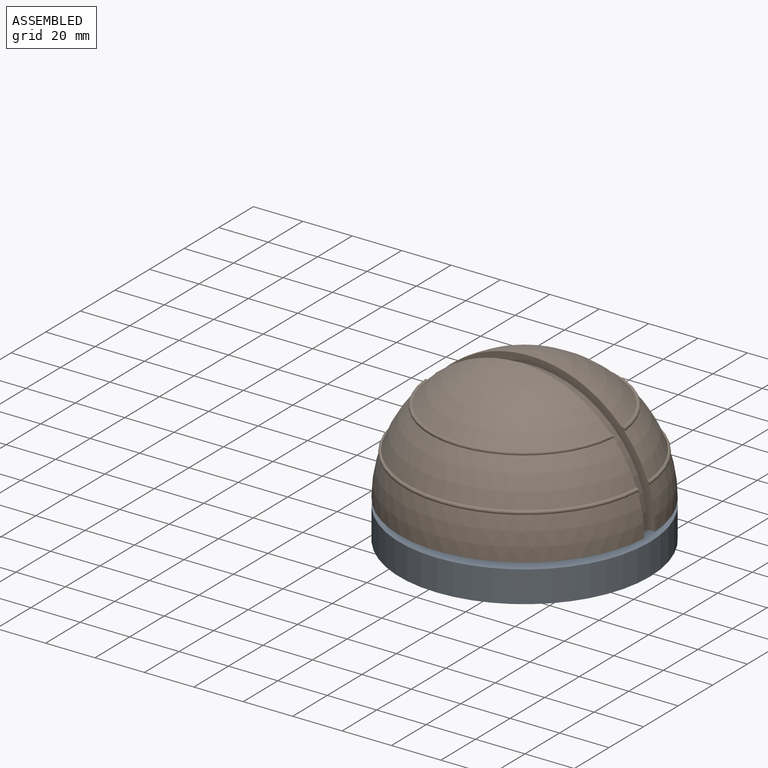
[diagram: assembled view]
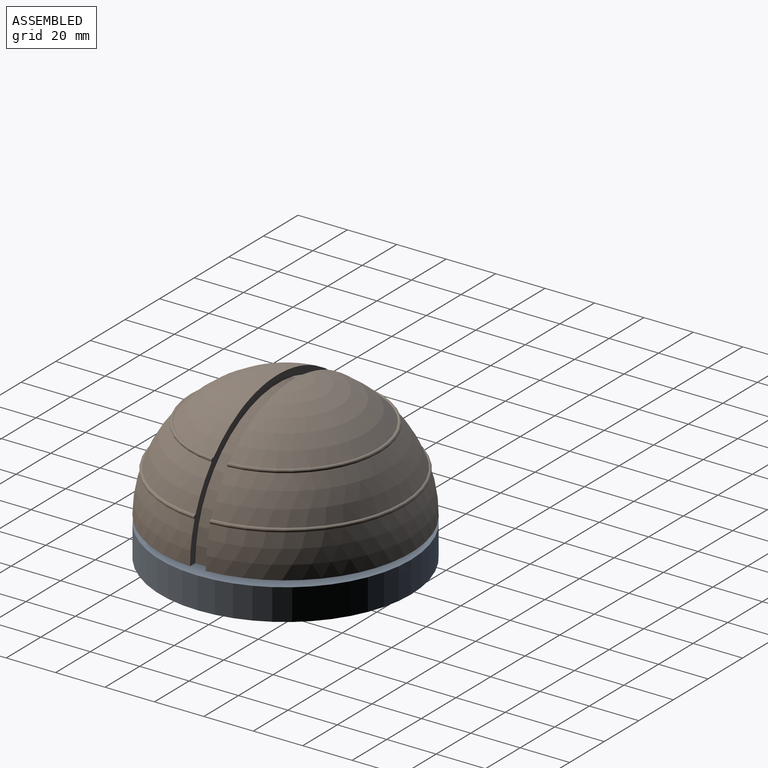
[diagram: assembled view, second angle]
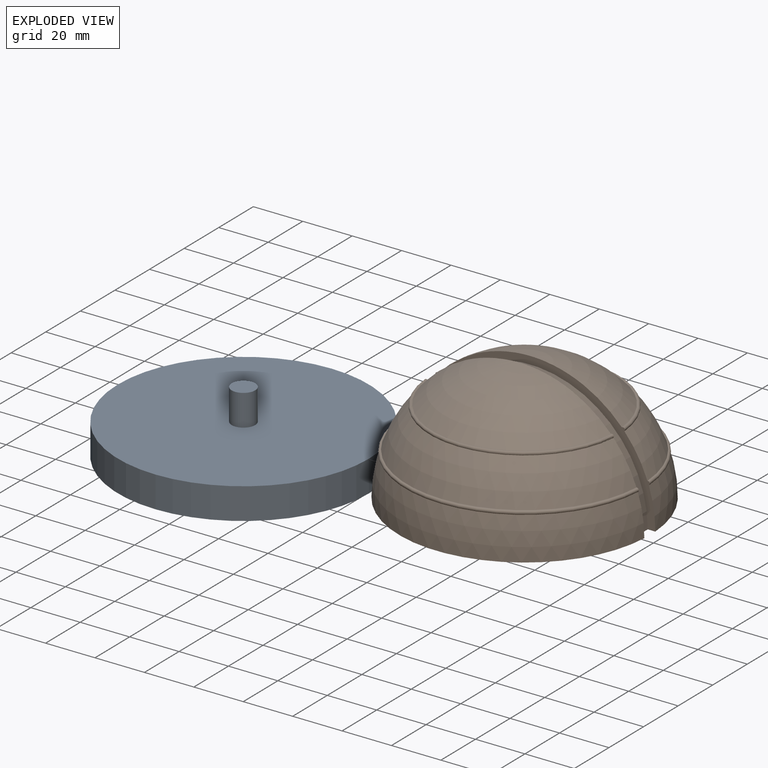
[diagram: exploded view]
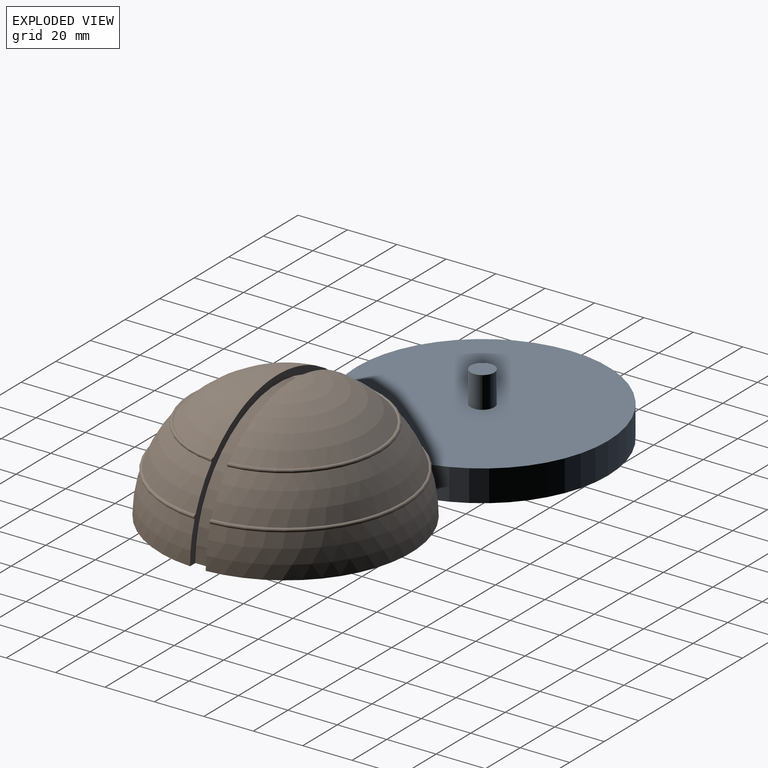
[diagram: exploded view, second angle]
ASSEMBLY  parts=2 mates=2
PART A: 5 faces, bbox 101.6x101.6x25.4 mm
  f0: cylinder r=50.8mm len=101.6mm, axis (0,0,-1), area 4053.7mm2, adj f1,f2
  f1: plane 101.6x101.6mm, normal (0,0,1), area 8036.1mm2, adj f0,f3
  f2: plane 101.6x101.6mm, normal (0,0,-1), area 8107.3mm2, adj f0
  f3: cylinder r=4.76mm len=12.7mm, axis (0,0,-1), area 380mm2, adj f1,f4
  f4: plane 9.53x9.53mm, normal (0,0,1), area 71.3mm2, adj f3
PART B: 16 faces, bbox 104.9x105.1x50.7 mm
  f0: sphere r=50.8mm, area 2485.3mm2, adj f1,f5,f14
  f1: torus R=47.76mm, axis (0,0,1), area 328.2mm2, adj f0,f2,f14
  f2: sphere r=50.8mm, area 2381.9mm2, adj f1,f3,f14
  f3: torus R=37.69mm, axis (0,0,1), area 252.3mm2, adj f2,f4,f14
  f4: sphere r=50.8mm, area 2331.3mm2, adj f3,f14
  f5: plane 101.6x101.4mm, normal (0,0,-1), area 7940.7mm2, adj f0,f6,f7,f13,f14,f15
  f6: sphere r=50.8mm, area 2485.3mm2, adj f5,f9,f15
  f7: cylinder r=6.35mm len=12.7mm, axis (0,0,-1), area 405.4mm2, adj f5,f8
  f8: plane 12.7x12.7mm, normal (0,0,-1), area 126.7mm2, adj f7
  f9: torus R=47.76mm, axis (0,0,1), area 328.2mm2, adj f6,f10,f15
  f10: sphere r=50.8mm, area 2381.9mm2, adj f9,f11,f15
  f11: torus R=37.69mm, axis (0,0,1), area 252.2mm2, adj f10,f12,f15
  f12: sphere r=50.8mm, area 2331.3mm2, adj f11,f15
  f13: cylinder r=47.62mm len=95.25mm, axis (0,-1,0), area 950.1mm2, adj f5,f14,f15
  f14: plane 101.4x50.7mm, normal (0,1,0), area 478.2mm2, adj f0,f1,f2,f3,f4,f5,f13
  f15: plane 101.4x50.7mm, normal (0,-1,0), area 478.2mm2, adj f5,f6,f9,f10,f11,f12,f13
PLACE A t=(-13.62,-26.48,-5.83)mm
PLACE B t=(-13.62,-26.48,9.41)mm
MATE fastened A.f3 <-> B.f7  axis (0,0,1) through (-13.62,-26.48,19.57)mm
MATE cylindrical A.f3 <-> B.f7  axis (0,0,1) through (-13.62,-26.48,19.57)mm
